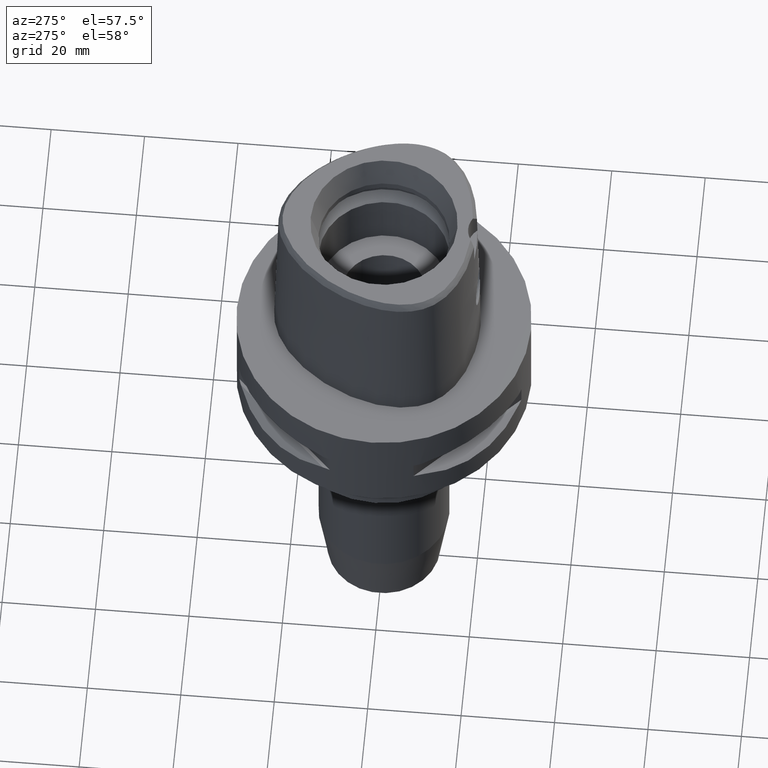
[diagram: clean part render]
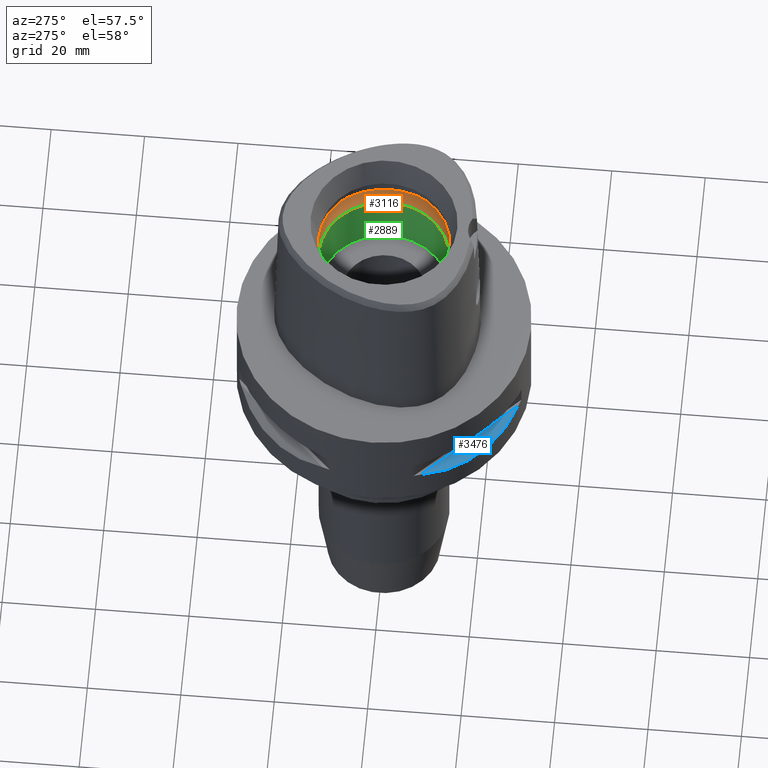
[diagram: same view with three faces highlighted in distinct colors, each labeled with its STEP entity id]
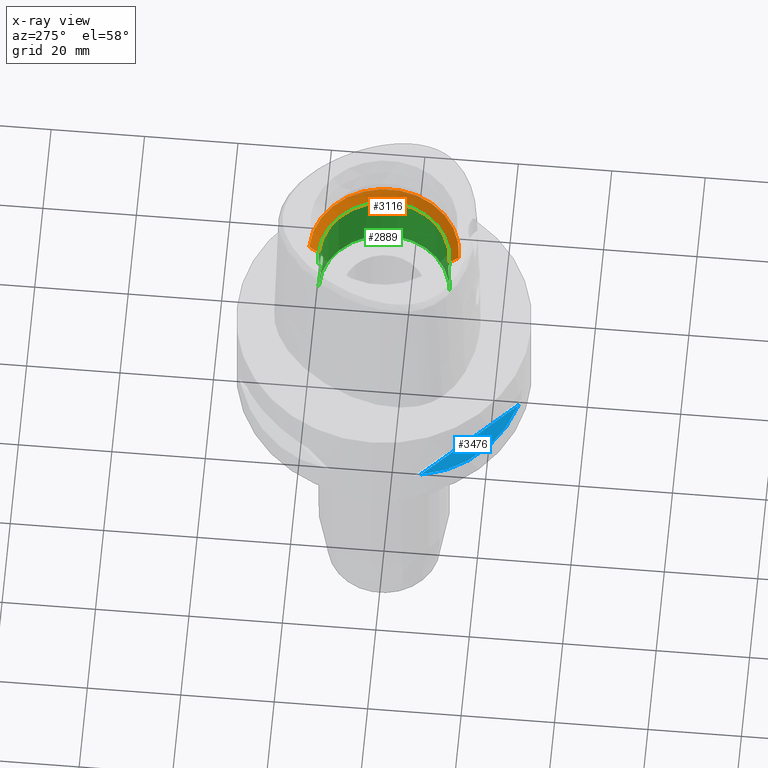
[diagram: x-ray of the same camera — body ghosted, the three highlighted faces saturated]
A machine part, auxiliary view with three faces highlighted in distinct colors.
The next image is the same camera in x-ray (body ghosted, the three faces saturated) — at least one of them is partly hidden behind the body in this view.
Their STEP definitions:

[orange] entity #3116 — the highlighted conical surface has half-angle 45 deg.
#1098=DIRECTION('',(0.E0,-7.071067811865E-1,7.071067811865E-1));
#1099=VECTOR('',#1098,2.828427124746E0);
#1100=CARTESIAN_POINT('',(0.E0,-1.4E1,2.42E1));
#1101=LINE('',#1100,#1099);
#1121=CARTESIAN_POINT('',(0.E0,0.E0,2.42E1));
#1122=DIRECTION('',(0.E0,0.E0,1.E0));
#1123=DIRECTION('',(0.E0,-1.E0,0.E0));
#1124=AXIS2_PLACEMENT_3D('',#1121,#1122,#1123);
#1129=DIRECTION('',(0.E0,7.071067811865E-1,7.071067811865E-1));
#1130=VECTOR('',#1129,2.828427124746E0);
#1131=CARTESIAN_POINT('',(0.E0,1.4E1,2.42E1));
#1132=LINE('',#1131,#1130);
#1136=CARTESIAN_POINT('',(0.E0,0.E0,2.62E1));
#1137=DIRECTION('',(0.E0,0.E0,-1.E0));
#1138=DIRECTION('',(0.E0,1.E0,0.E0));
#1139=AXIS2_PLACEMENT_3D('',#1136,#1137,#1138);
#1698=CARTESIAN_POINT('',(0.E0,1.4E1,2.42E1));
#1699=VERTEX_POINT('',#1698);
#1700=CARTESIAN_POINT('',(0.E0,-1.4E1,2.42E1));
#1701=VERTEX_POINT('',#1700);
#1709=CARTESIAN_POINT('',(0.E0,-1.6E1,2.62E1));
#1710=VERTEX_POINT('',#1709);
#1711=CARTESIAN_POINT('',(0.E0,1.6E1,2.62E1));
#1712=VERTEX_POINT('',#1711);
#3104=CARTESIAN_POINT('',(0.E0,0.E0,2.52E1));
#3105=DIRECTION('',(0.E0,0.E0,1.E0));
#3106=DIRECTION('',(0.E0,1.E0,0.E0));
#3107=AXIS2_PLACEMENT_3D('',#3104,#3105,#3106);
#3108=CONICAL_SURFACE('',#3107,1.5E1,4.5E1);
#3109=ORIENTED_EDGE('',*,*,#3094,.F.);
#3110=ORIENTED_EDGE('',*,*,#2876,.T.);
#3111=ORIENTED_EDGE('',*,*,#3098,.T.);
#3113=ORIENTED_EDGE('',*,*,#3112,.T.);
#3114=EDGE_LOOP('',(#3109,#3110,#3111,#3113));
#3115=FACE_OUTER_BOUND('',#3114,.F.);
#1125=CIRCLE('',#1124,1.4E1);
#1140=CIRCLE('',#1139,1.6E1);
#2876=EDGE_CURVE('',#1701,#1699,#1125,.T.);
#3094=EDGE_CURVE('',#1701,#1710,#1101,.T.);
#3098=EDGE_CURVE('',#1699,#1712,#1132,.T.);
#3112=EDGE_CURVE('',#1712,#1710,#1140,.T.);
#3116=ADVANCED_FACE('',(#3115),#3108,.F.);

[blue] entity #3476 — the highlighted planar face has unit normal (0.3536, 0.3536, -0.866).
#433=CARTESIAN_POINT('',(-2.971690375018E1,-1.044775724750E1,-1.405E1));
#434=CARTESIAN_POINT('',(-2.888151197365E1,-1.282388988809E1,
-1.467900482380E1));
#435=CARTESIAN_POINT('',(-2.674739463903E1,-1.711282138769E1,
-1.555870402292E1));
#436=CARTESIAN_POINT('',(-2.244574140438E1,-2.244574140438E1,
-1.597971692370E1));
#437=CARTESIAN_POINT('',(-1.711282138769E1,-2.674739463903E1,
-1.555870402292E1));
#438=CARTESIAN_POINT('',(-1.282388988809E1,-2.888151197365E1,
-1.467900482380E1));
#439=CARTESIAN_POINT('',(-1.044775724750E1,-2.971690375018E1,-1.405E1));
#1543=DIRECTION('',(7.071067811865E-1,-7.071067811865E-1,0.E0));
#1544=VECTOR('',#1543,2.725068831944E1);
#1545=CARTESIAN_POINT('',(-2.971690375018E1,-1.044775724750E1,-1.405E1));
#1546=LINE('',#1545,#1544);
#1603=CARTESIAN_POINT('',(-2.971690375018E1,-1.044775724750E1,-1.405E1));
#1604=VERTEX_POINT('',#1603);
#1605=VERTEX_POINT('',#439);
#3467=CARTESIAN_POINT('',(-5.940194875108E0,-3.422446612257E1,-1.405E1));
#3468=DIRECTION('',(3.535533905933E-1,3.535533905933E-1,-8.660254037844E-1));
#3469=DIRECTION('',(-6.123724356958E-1,-6.123724356958E-1,-5.E-1));
#3470=AXIS2_PLACEMENT_3D('',#3467,#3468,#3469);
#3471=PLANE('',#3470);
#3472=ORIENTED_EDGE('',*,*,#2459,.F.);
#3473=ORIENTED_EDGE('',*,*,#3460,.T.);
#3474=EDGE_LOOP('',(#3472,#3473));
#3475=FACE_OUTER_BOUND('',#3474,.F.);
#440=B_SPLINE_CURVE_WITH_KNOTS('',3,(#433,#434,#435,#436,#437,#438,#439),
.UNSPECIFIED.,.F.,.F.,(4,1,1,1,4),(0.E0,2.5E-1,5.E-1,7.5E-1,1.E0),
.UNSPECIFIED.);
#2459=EDGE_CURVE('',#1604,#1605,#440,.T.);
#3460=EDGE_CURVE('',#1604,#1605,#1546,.T.);
#3476=ADVANCED_FACE('',(#3475),#3471,.F.);

[green] entity #2889 — the highlighted cylindrical surface (partial cylindrical patch) has radius 14 mm, axis along (0, 0, -1).
#858=CARTESIAN_POINT('',(0.E0,0.E0,1.1E1));
#859=DIRECTION('',(0.E0,0.E0,-1.E0));
#860=DIRECTION('',(0.E0,1.E0,0.E0));
#861=AXIS2_PLACEMENT_3D('',#858,#859,#860);
#890=CARTESIAN_POINT('',(0.E0,1.4E1,1.145E1));
#891=CARTESIAN_POINT('',(3.257144545379E-1,1.4E1,1.145E1));
#892=CARTESIAN_POINT('',(9.593415615361E-1,1.397751429725E1,1.152681160103E1));
#893=CARTESIAN_POINT('',(1.868233590392E0,1.388409645246E1,1.186265110699E1));
#894=CARTESIAN_POINT('',(2.685009502818E0,1.374717101718E1,1.241480063107E1));
#895=CARTESIAN_POINT('',(3.352592352032E0,1.359691586393E1,1.315492608126E1));
#896=CARTESIAN_POINT('',(3.824718947743E0,1.346902389972E1,1.404865533159E1));
#897=CARTESIAN_POINT('',(4.059972485821E0,1.339843259849E1,1.500867324322E1));
#898=CARTESIAN_POINT('',(4.058768199920E0,1.339880595545E1,1.599234325395E1));
#899=CARTESIAN_POINT('',(3.830217828408E0,1.346733835159E1,1.693067896133E1));
#900=CARTESIAN_POINT('',(3.376548096141E0,1.359070487378E1,1.780819439894E1));
#901=CARTESIAN_POINT('',(2.721761822695E0,1.373987178788E1,1.855361803621E1));
#902=CARTESIAN_POINT('',(1.896707547861E0,1.388065541092E1,1.912490022073E1));
#903=CARTESIAN_POINT('',(9.657444874258E-1,1.397745693152E1,1.947305099177E1));
#904=CARTESIAN_POINT('',(3.272318661774E-1,1.4E1,1.955E1));
#905=CARTESIAN_POINT('',(0.E0,1.4E1,1.955E1));
#910=DIRECTION('',(0.E0,0.E0,1.E0));
#911=VECTOR('',#910,4.65E0);
#912=CARTESIAN_POINT('',(0.E0,1.4E1,1.955E1));
#913=LINE('',#912,#911);
#917=CARTESIAN_POINT('',(0.E0,-1.4E1,1.955E1));
#918=CARTESIAN_POINT('',(3.257061333188E-1,-1.4E1,1.955E1));
#919=CARTESIAN_POINT('',(9.593260942823E-1,-1.397751580988E1,1.947319364039E1));
#920=CARTESIAN_POINT('',(1.868259288005E0,-1.388409394846E1,1.913734030015E1));
#921=CARTESIAN_POINT('',(2.685056185638E0,-1.374716162752E1,1.858515917491E1));
#922=CARTESIAN_POINT('',(3.352605798371E0,-1.359691221125E1,1.784504796155E1));
#923=CARTESIAN_POINT('',(3.824737663849E0,-1.346901880628E1,1.695131699619E1));
#924=CARTESIAN_POINT('',(4.060003876242E0,-1.339842300871E1,1.599114806812E1));
#925=CARTESIAN_POINT('',(4.058737934530E0,-1.339881522562E1,1.500747844467E1));
#926=CARTESIAN_POINT('',(3.830191806853E0,-1.346734554971E1,1.406927337287E1));
#927=CARTESIAN_POINT('',(3.376535241766E0,-1.359070823933E1,1.319178275893E1));
#928=CARTESIAN_POINT('',(2.721722737381E0,-1.373987978096E1,1.244634769440E1));
#929=CARTESIAN_POINT('',(1.896685044685E0,-1.388065765475E1,1.187509187779E1));
#930=CARTESIAN_POINT('',(9.657585200220E-1,-1.397745554793E1,1.152695382942E1));
#931=CARTESIAN_POINT('',(3.272392978414E-1,-1.4E1,1.145E1));
#932=CARTESIAN_POINT('',(0.E0,-1.4E1,1.145E1));
#937=DIRECTION('',(0.E0,0.E0,1.E0));
#938=VECTOR('',#937,4.5E-1);
#939=CARTESIAN_POINT('',(0.E0,1.4E1,1.1E1));
#940=LINE('',#939,#938);
#978=DIRECTION('',(0.E0,0.E0,1.E0));
#979=VECTOR('',#978,4.65E0);
#980=CARTESIAN_POINT('',(0.E0,-1.4E1,1.955E1));
#981=LINE('',#980,#979);
#1005=DIRECTION('',(0.E0,0.E0,1.E0));
#1006=VECTOR('',#1005,4.5E-1);
#1007=CARTESIAN_POINT('',(0.E0,-1.4E1,1.1E1));
#1008=LINE('',#1007,#1006);
#1121=CARTESIAN_POINT('',(0.E0,0.E0,2.42E1));
#1122=DIRECTION('',(0.E0,0.E0,1.E0));
#1123=DIRECTION('',(0.E0,-1.E0,0.E0));
#1124=AXIS2_PLACEMENT_3D('',#1121,#1122,#1123);
#1692=CARTESIAN_POINT('',(0.E0,1.4E1,1.1E1));
#1693=CARTESIAN_POINT('',(0.E0,-1.4E1,1.1E1));
#1694=VERTEX_POINT('',#1692);
#1695=VERTEX_POINT('',#1693);
#1696=VERTEX_POINT('',#890);
#1697=VERTEX_POINT('',#905);
#1698=CARTESIAN_POINT('',(0.E0,1.4E1,2.42E1));
#1699=VERTEX_POINT('',#1698);
#1700=CARTESIAN_POINT('',(0.E0,-1.4E1,2.42E1));
#1701=VERTEX_POINT('',#1700);
#1702=CARTESIAN_POINT('',(0.E0,-1.4E1,1.955E1));
#1703=VERTEX_POINT('',#1702);
#1704=VERTEX_POINT('',#932);
#2867=CARTESIAN_POINT('',(0.E0,0.E0,3.99E1));
#2868=DIRECTION('',(0.E0,0.E0,-1.E0));
#2869=DIRECTION('',(0.E0,-1.E0,0.E0));
#2870=AXIS2_PLACEMENT_3D('',#2867,#2868,#2869);
#2871=CYLINDRICAL_SURFACE('',#2870,1.4E1);
#2873=ORIENTED_EDGE('',*,*,#2872,.T.);
#2875=ORIENTED_EDGE('',*,*,#2874,.T.);
#2877=ORIENTED_EDGE('',*,*,#2876,.F.);
#2879=ORIENTED_EDGE('',*,*,#2878,.F.);
#2881=ORIENTED_EDGE('',*,*,#2880,.T.);
#2883=ORIENTED_EDGE('',*,*,#2882,.F.);
#2884=ORIENTED_EDGE('',*,*,#2856,.F.);
#2886=ORIENTED_EDGE('',*,*,#2885,.T.);
#2887=EDGE_LOOP('',(#2873,#2875,#2877,#2879,#2881,#2883,#2884,#2886));
#2888=FACE_OUTER_BOUND('',#2887,.F.);
#862=CIRCLE('',#861,1.4E1);
#906=B_SPLINE_CURVE_WITH_KNOTS('',3,(#890,#891,#892,#893,#894,#895,#896,#897,
#898,#899,#900,#901,#902,#903,#904,#905),.UNSPECIFIED.,.F.,.F.,(4,1,1,1,1,1,1,1,
1,1,1,1,1,4),(0.E0,7.692307692308E-2,1.538461538462E-1,2.307692307692E-1,
3.076923076923E-1,3.846153846154E-1,4.615384615385E-1,5.384615384615E-1,
6.153846153846E-1,6.923076923077E-1,7.692307692308E-1,8.461538461538E-1,
9.230769230769E-1,1.E0),.UNSPECIFIED.);
#933=B_SPLINE_CURVE_WITH_KNOTS('',3,(#917,#918,#919,#920,#921,#922,#923,#924,
#925,#926,#927,#928,#929,#930,#931,#932),.UNSPECIFIED.,.F.,.F.,(4,1,1,1,1,1,1,1,
1,1,1,1,1,4),(0.E0,7.692307692308E-2,1.538461538462E-1,2.307692307692E-1,
3.076923076923E-1,3.846153846154E-1,4.615384615385E-1,5.384615384615E-1,
6.153846153846E-1,6.923076923077E-1,7.692307692308E-1,8.461538461538E-1,
9.230769230769E-1,1.E0),.UNSPECIFIED.);
#1125=CIRCLE('',#1124,1.4E1);
#2856=EDGE_CURVE('',#1694,#1695,#862,.T.);
#2872=EDGE_CURVE('',#1696,#1697,#906,.T.);
#2874=EDGE_CURVE('',#1697,#1699,#913,.T.);
#2876=EDGE_CURVE('',#1701,#1699,#1125,.T.);
#2878=EDGE_CURVE('',#1703,#1701,#981,.T.);
#2880=EDGE_CURVE('',#1703,#1704,#933,.T.);
#2882=EDGE_CURVE('',#1695,#1704,#1008,.T.);
#2885=EDGE_CURVE('',#1694,#1696,#940,.T.);
#2889=ADVANCED_FACE('',(#2888),#2871,.F.);